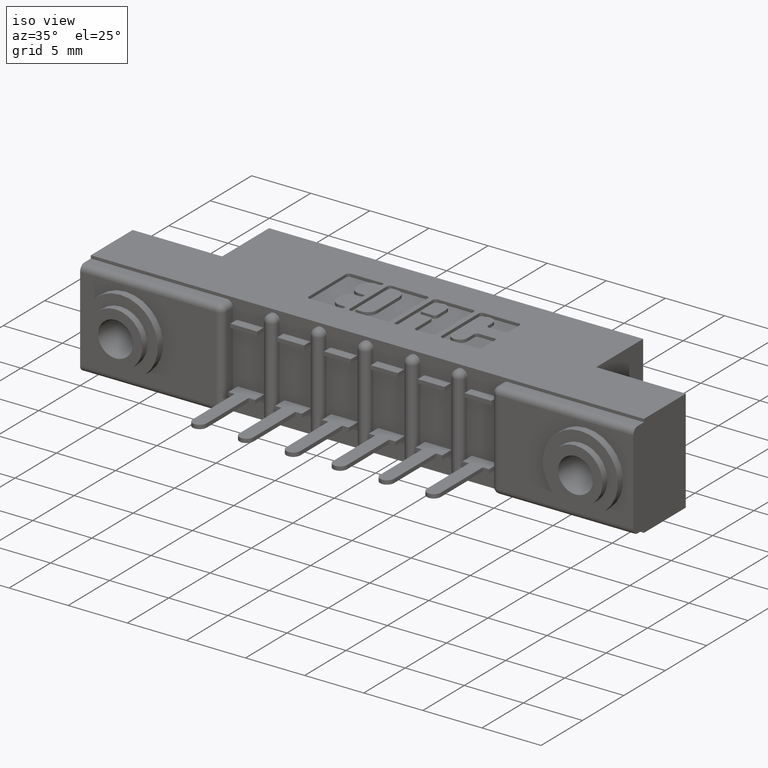
[diagram: clean part render]
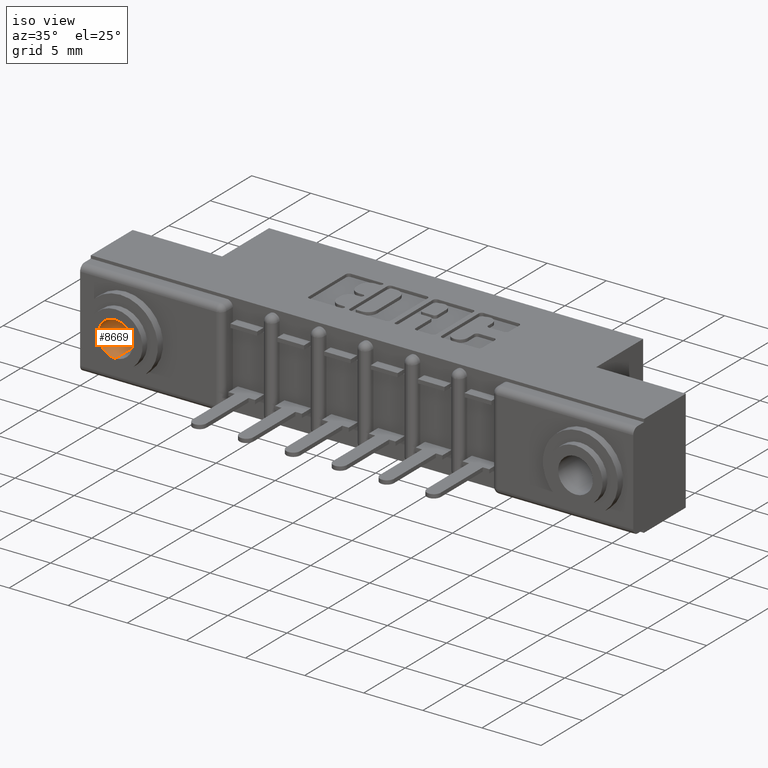
[diagram: same view with one face highlighted and labeled with its STEP entity id]
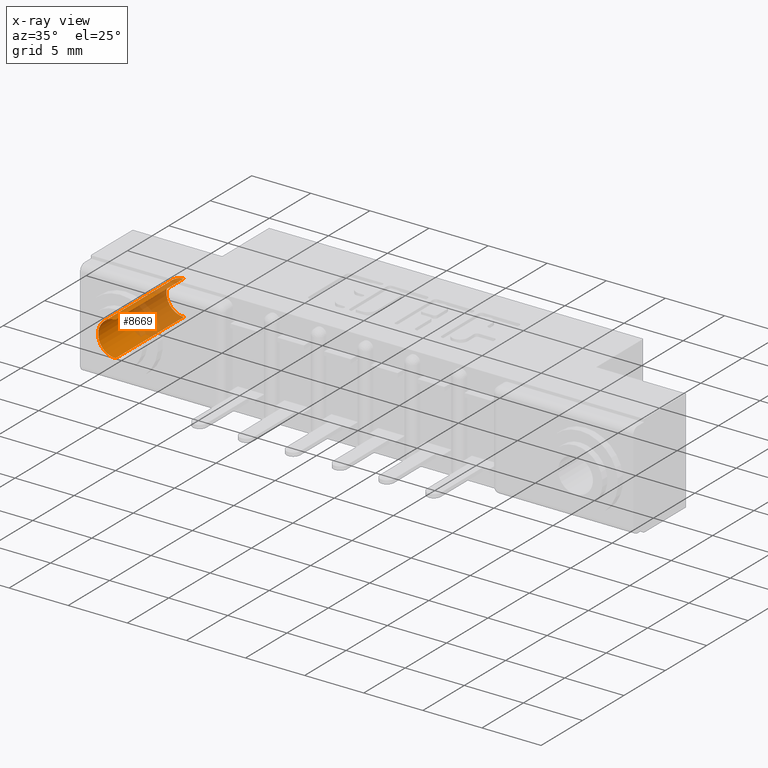
[diagram: x-ray of the same camera — body ghosted, the highlighted face saturated]
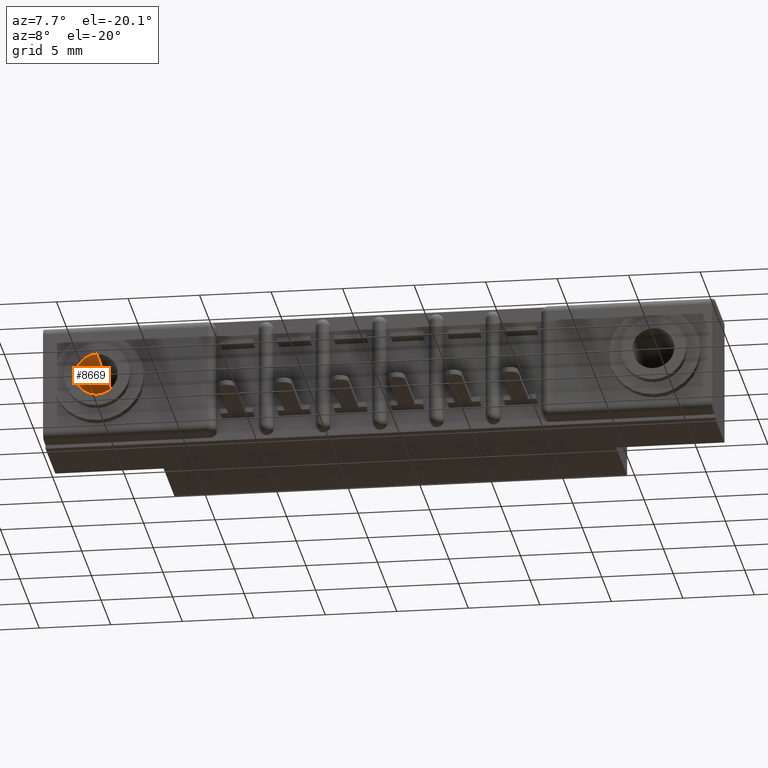
[diagram: same view with one face highlighted and labeled with its STEP entity id]
A machine part, iso view. The second image highlights one B-rep face of the part: STEP entity #8669.
The next image is the same camera in x-ray: the body ghosted, the highlighted face saturated — about 50% of this face is hidden behind the body in this view.
A second angle (auxiliary view) of the same face is appended — the face is thin or edge-on in the first view.
In plain terms, the highlighted cylindrical surface (edge-blend (fillet) strip) has radius 1.4732 mm, axis along (-0, -1, 0).
Its self-contained STEP definition (entity closure, byte-faithful):
#296 = DIRECTION ( 'NONE',  ( -3.408749858497505200E-034, 0.0000000000000000000, 1.000000000000000000 ) ) ;
#791 = AXIS2_PLACEMENT_3D ( 'NONE', #2096, #2961, #296 ) ;
#1462 = CARTESIAN_POINT ( 'NONE',  ( -1.977074917928553200E-035, -0.1640487732352790300, 0.05800000000000000300 ) ) ;
#1737 = EDGE_CURVE ( 'NONE', #8457, #3773, #7172, .T. ) ;
#2096 = CARTESIAN_POINT ( 'NONE',  ( 0.0000000000000000000, 0.3279999999999999000, 0.0000000000000000000 ) ) ;
#2197 = CARTESIAN_POINT ( 'NONE',  ( -1.977074917928553200E-035, 0.3279999999999999000, 0.05800000000000000300 ) ) ;
#2199 = DIRECTION ( 'NONE',  ( -2.465190328815661900E-032, 1.000000000000000000, 0.0000000000000000000 ) ) ;
#2920 = CARTESIAN_POINT ( 'NONE',  ( 7.102951435054649800E-018, -0.1640487732352790300, -0.05800000000000000300 ) ) ;
#2961 = DIRECTION ( 'NONE',  ( -2.465190328815661900E-032, 1.000000000000000000, 0.0000000000000000000 ) ) ;
#3182 = CARTESIAN_POINT ( 'NONE',  ( 0.0000000000000000000, 0.002999999999999804000, 0.0000000000000000000 ) ) ;
#3183 = ORIENTED_EDGE ( 'NONE', *, *, #7467, .T. ) ;
#3350 = EDGE_CURVE ( 'NONE', #9856, #3773, #8572, .T. ) ;
#3694 = CIRCLE ( 'NONE', #4198, 0.05800000000000000300 ) ;
#3773 = VERTEX_POINT ( 'NONE', #2197 ) ;
#3807 = ORIENTED_EDGE ( 'NONE', *, *, #1737, .T. ) ;
#4198 = AXIS2_PLACEMENT_3D ( 'NONE', #3182, #9232, #8323 ) ;
#4506 = AXIS2_PLACEMENT_3D ( 'NONE', #7330, #6506, #5704 ) ;
#4556 = CARTESIAN_POINT ( 'NONE',  ( -1.977074917928553200E-035, 0.002999999999999804000, 0.05800000000000000300 ) ) ;
#4753 = VERTEX_POINT ( 'NONE', #5318 ) ;
#5318 = CARTESIAN_POINT ( 'NONE',  ( 7.102951435054640600E-018, 0.002999999999999804000, -0.05800000000000000300 ) ) ;
#5372 = VECTOR ( 'NONE', #2199, 39.37007874015748100 ) ;
#5704 = DIRECTION ( 'NONE',  ( -3.408749858497505200E-034, 0.0000000000000000000, 1.000000000000000000 ) ) ;
#6323 = LINE ( 'NONE', #2920, #5372 ) ;
#6506 = DIRECTION ( 'NONE',  ( -2.465190328815661900E-032, 1.000000000000000000, 0.0000000000000000000 ) ) ;
#7172 = CIRCLE ( 'NONE', #791, 0.05800000000000000300 ) ;
#7330 = CARTESIAN_POINT ( 'NONE',  ( 0.0000000000000000000, -0.1640487732352790300, 0.0000000000000000000 ) ) ;
#7467 = EDGE_CURVE ( 'NONE', #4753, #8457, #6323, .T. ) ;
#7554 = EDGE_CURVE ( 'NONE', #9856, #4753, #3694, .T. ) ;
#7909 = VECTOR ( 'NONE', #8447, 39.37007874015748100 ) ;
#8045 = ORIENTED_EDGE ( 'NONE', *, *, #3350, .F. ) ;
#8047 = ORIENTED_EDGE ( 'NONE', *, *, #7554, .T. ) ;
#8250 = FACE_OUTER_BOUND ( 'NONE', #8895, .T. ) ;
#8323 = DIRECTION ( 'NONE',  ( -3.408749858497505200E-034, 0.0000000000000000000, 1.000000000000000000 ) ) ;
#8447 = DIRECTION ( 'NONE',  ( -2.465190328815661900E-032, 1.000000000000000000, 0.0000000000000000000 ) ) ;
#8457 = VERTEX_POINT ( 'NONE', #8785 ) ;
#8572 = LINE ( 'NONE', #1462, #7909 ) ;
#8669 = ADVANCED_FACE ( 'NONE', ( #8250 ), #11259, .F. ) ;
#8785 = CARTESIAN_POINT ( 'NONE',  ( 7.102951435054640600E-018, 0.3279999999999999000, -0.05800000000000000300 ) ) ;
#8895 = EDGE_LOOP ( 'NONE', ( #8047, #3183, #3807, #8045 ) ) ;
#9232 = DIRECTION ( 'NONE',  ( 2.465190328815661900E-032, -1.000000000000000000, -0.0000000000000000000 ) ) ;
#9856 = VERTEX_POINT ( 'NONE', #4556 ) ;
#11259 = CYLINDRICAL_SURFACE ( 'NONE', #4506, 0.05800000000000000300 ) ;